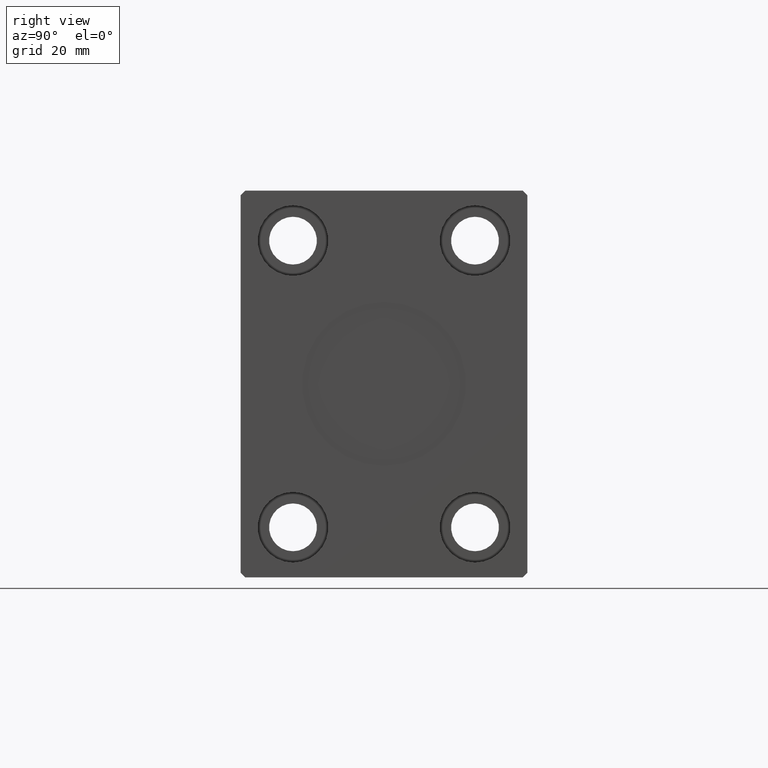
[diagram: clean part render]
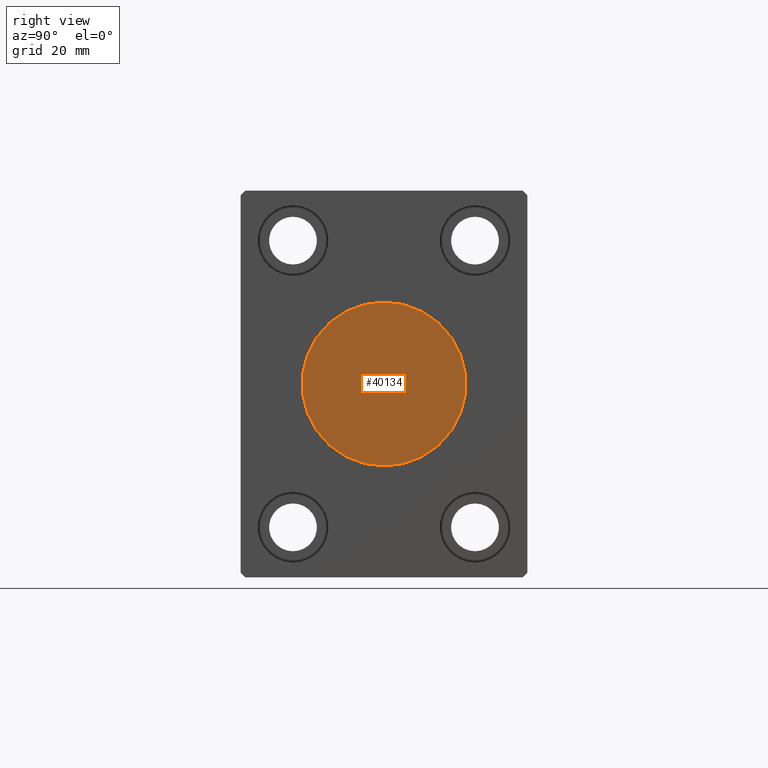
[diagram: same view with one face highlighted and labeled with its STEP entity id]
A machine part, right view. The second image highlights one B-rep face of the part: STEP entity #40134.
In plain terms, the highlighted planar face has unit normal (1, 0, 0).
Its self-contained STEP definition (entity closure, byte-faithful):
#4117 = ORIENTED_EDGE ( 'NONE', *, *, #29998, .T. ) ;
#6853 = VERTEX_POINT ( 'NONE', #20111 ) ;
#7922 = CARTESIAN_POINT ( 'NONE',  ( 120.7999999999999972, 0.000000000000000000, 0.000000000000000000 ) ) ;
#8346 = AXIS2_PLACEMENT_3D ( 'NONE', #32508, #32306, #38714 ) ;
#11777 = FACE_OUTER_BOUND ( 'NONE', #24212, .T. ) ;
#19348 = ORIENTED_EDGE ( 'NONE', *, *, #40478, .T. ) ;
#20111 = CARTESIAN_POINT ( 'NONE',  ( 120.7999999999999972, 2.204364238465235428E-15, 18.00000000000000000 ) ) ;
#24212 = EDGE_LOOP ( 'NONE', ( #4117, #19348 ) ) ;
#24434 = DIRECTION ( 'NONE',  ( 1.000000000000000000, 0.000000000000000000, 0.000000000000000000 ) ) ;
#28806 = AXIS2_PLACEMENT_3D ( 'NONE', #7922, #24434, #40920 ) ;
#29998 = EDGE_CURVE ( 'NONE', #39364, #6853, #40287, .T. ) ;
#30999 = DIRECTION ( 'NONE',  ( 1.000000000000000000, 0.000000000000000000, 0.000000000000000000 ) ) ;
#32306 = DIRECTION ( 'NONE',  ( 1.000000000000000000, 0.000000000000000000, 0.000000000000000000 ) ) ;
#32508 = CARTESIAN_POINT ( 'NONE',  ( 120.7999999999999972, 0.000000000000000000, 0.000000000000000000 ) ) ;
#33797 = CARTESIAN_POINT ( 'NONE',  ( 120.7999999999999972, 0.000000000000000000, 0.000000000000000000 ) ) ;
#34856 = AXIS2_PLACEMENT_3D ( 'NONE', #33797, #30999, #40220 ) ;
#36322 = CIRCLE ( 'NONE', #8346, 18.00000000000000000 ) ;
#36819 = CARTESIAN_POINT ( 'NONE',  ( 120.7999999999999972, 0.000000000000000000, -18.00000000000000000 ) ) ;
#37919 = PLANE ( 'NONE',  #28806 ) ;
#38714 = DIRECTION ( 'NONE',  ( 0.000000000000000000, 0.000000000000000000, -1.000000000000000000 ) ) ;
#39364 = VERTEX_POINT ( 'NONE', #36819 ) ;
#40134 = ADVANCED_FACE ( 'NONE', ( #11777 ), #37919, .T. ) ;
#40220 = DIRECTION ( 'NONE',  ( 0.000000000000000000, 0.000000000000000000, -1.000000000000000000 ) ) ;
#40287 = CIRCLE ( 'NONE', #34856, 18.00000000000000000 ) ;
#40478 = EDGE_CURVE ( 'NONE', #6853, #39364, #36322, .T. ) ;
#40920 = DIRECTION ( 'NONE',  ( 0.000000000000000000, 0.000000000000000000, -1.000000000000000000 ) ) ;